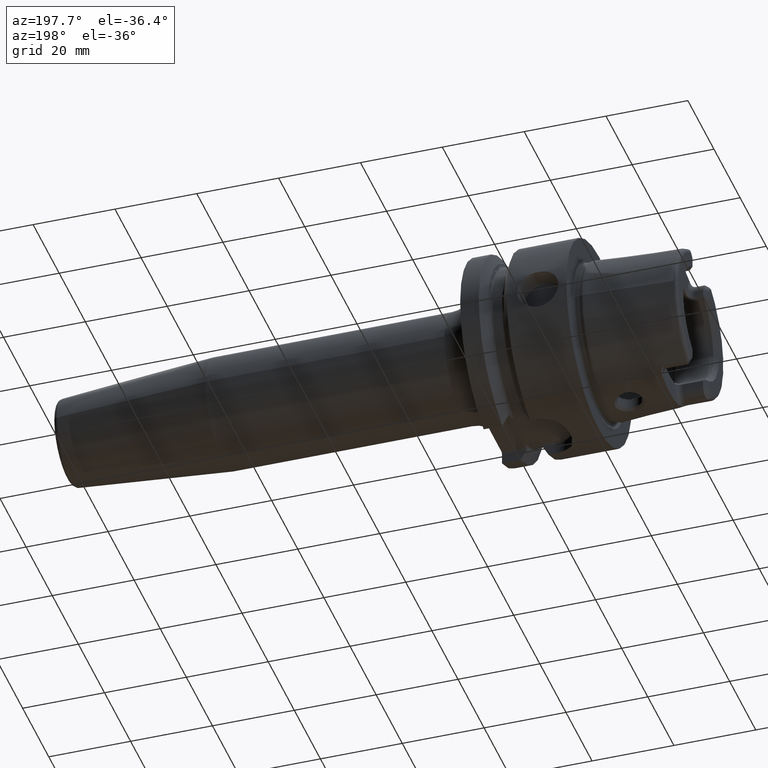
[diagram: clean part render]
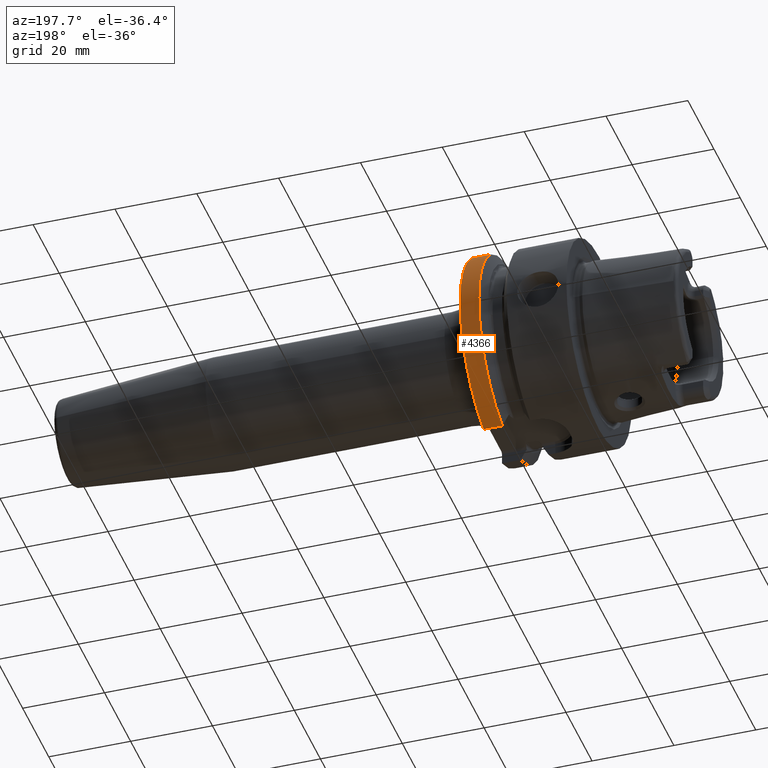
[diagram: same view with one face highlighted and labeled with its STEP entity id]
A machine part, auxiliary view. The second image highlights one B-rep face of the part: STEP entity #4366.
In plain terms, the highlighted cylindrical surface (partial cylindrical patch) has radius 25 mm, axis along (1, 0, 0).
Its self-contained STEP definition (entity closure, byte-faithful):
#1037=CARTESIAN_POINT('',(2.139193283149E1,0.E0,0.E0));
#1038=DIRECTION('',(-1.E0,0.E0,0.E0));
#1039=DIRECTION('',(0.E0,2.407E-1,9.705995621264E-1));
#1040=AXIS2_PLACEMENT_3D('',#1037,#1038,#1039);
#1042=DIRECTION('',(1.E0,0.E0,0.E0));
#1043=VECTOR('',#1042,4.558067168511E0);
#1044=CARTESIAN_POINT('',(2.139193283149E1,7.0175E0,-2.399488890889E1));
#1045=LINE('',#1044,#1043);
#1046=CARTESIAN_POINT('',(2.595E1,0.E0,0.E0));
#1047=DIRECTION('',(1.E0,0.E0,0.E0));
#1048=DIRECTION('',(0.E0,2.807E-1,-9.597955563556E-1));
#1049=AXIS2_PLACEMENT_3D('',#1046,#1047,#1048);
#1051=DIRECTION('',(1.E0,0.E0,0.E0));
#1052=VECTOR('',#1051,4.558067168511E0);
#1053=CARTESIAN_POINT('',(2.139193283149E1,6.0175E0,2.426498905316E1));
#1054=LINE('',#1053,#1052);
#1691=CARTESIAN_POINT('',(2.139193283149E1,6.0175E0,2.426498905316E1));
#1835=CARTESIAN_POINT('',(2.139193283149E1,7.0175E0,-2.399488890889E1));
#2984=VERTEX_POINT('',#1691);
#2994=VERTEX_POINT('',#1835);
#3191=CARTESIAN_POINT('',(2.595E1,6.0175E0,2.426498905316E1));
#3192=VERTEX_POINT('',#3191);
#3197=CARTESIAN_POINT('',(2.595E1,7.0175E0,-2.399488890889E1));
#3198=VERTEX_POINT('',#3197);
#4351=CARTESIAN_POINT('',(-2.74425E1,0.E0,0.E0));
#4352=DIRECTION('',(1.E0,0.E0,0.E0));
#4353=DIRECTION('',(0.E0,-1.E0,0.E0));
#4354=AXIS2_PLACEMENT_3D('',#4351,#4352,#4353);
#4355=CYLINDRICAL_SURFACE('',#4354,2.5E1);
#4357=ORIENTED_EDGE('',*,*,#4356,.T.);
#4359=ORIENTED_EDGE('',*,*,#4358,.T.);
#4361=ORIENTED_EDGE('',*,*,#4360,.T.);
#4363=ORIENTED_EDGE('',*,*,#4362,.F.);
#4364=EDGE_LOOP('',(#4357,#4359,#4361,#4363));
#4365=FACE_OUTER_BOUND('',#4364,.F.);
#4366=ADVANCED_FACE('',(#4365),#4355,.T.);
#1041=CIRCLE('',#1040,2.5E1);
#1050=CIRCLE('',#1049,2.5E1);
#4356=EDGE_CURVE('',#2984,#2994,#1041,.T.);
#4358=EDGE_CURVE('',#2994,#3198,#1045,.T.);
#4360=EDGE_CURVE('',#3198,#3192,#1050,.T.);
#4362=EDGE_CURVE('',#2984,#3192,#1054,.T.);